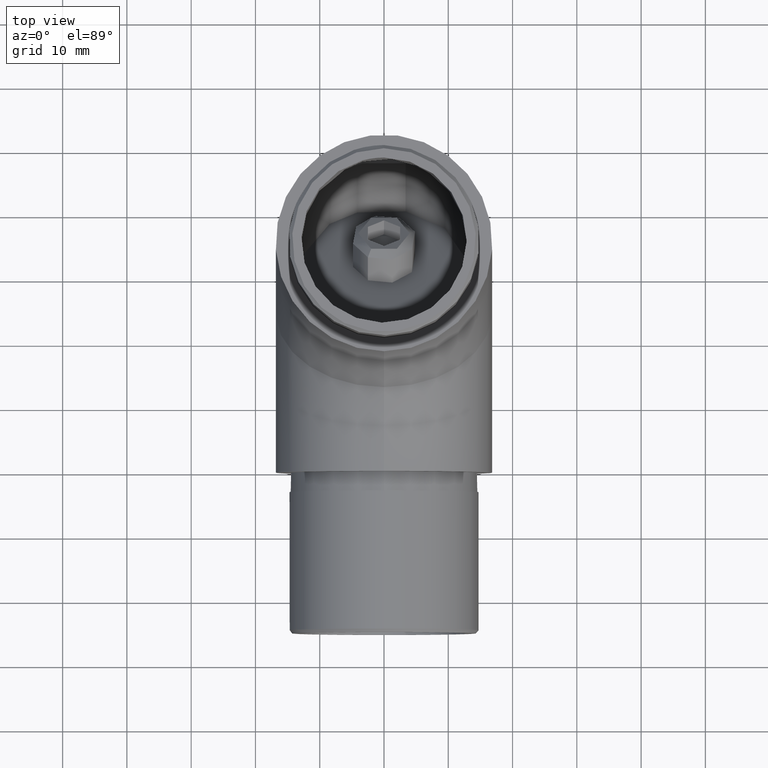
[diagram: clean part render]
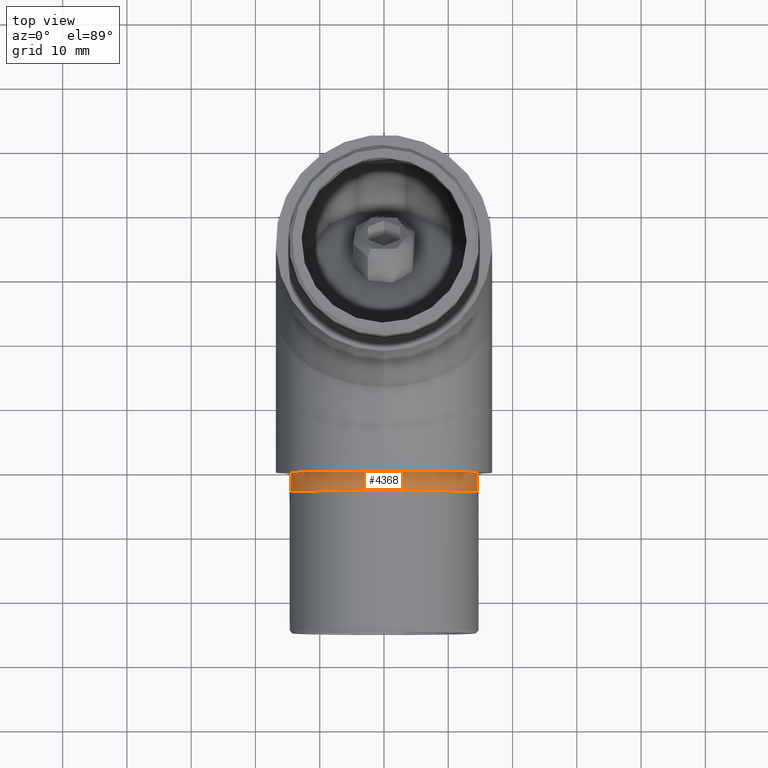
[diagram: same view with one face highlighted and labeled with its STEP entity id]
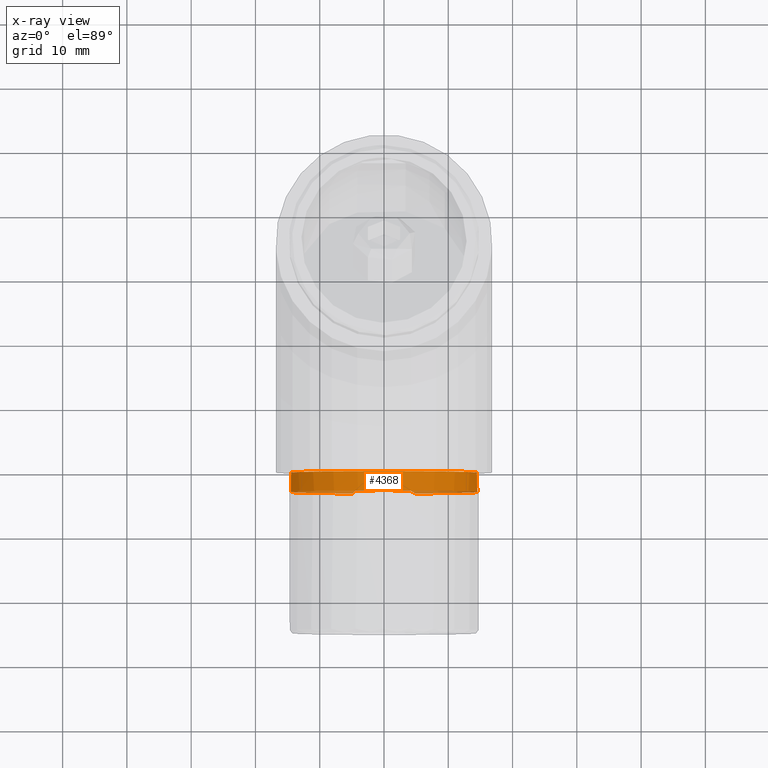
[diagram: x-ray of the same camera — body ghosted, the highlighted face saturated]
A machine part, top view. The second image highlights one B-rep face of the part: STEP entity #4368.
The next image is the same camera in x-ray: the body ghosted, the highlighted face saturated — about 7% of this face is hidden behind the body in this view.
In plain terms, the highlighted cylindrical surface (bore or boss wall) has radius 14.6 mm, axis along (0, 1, 0).
Its self-contained STEP definition (entity closure, byte-faithful):
#169 = VERTEX_POINT ( 'NONE', #4537 ) ;
#983 = CARTESIAN_POINT ( 'NONE',  ( 3.735386731977853500, -1.792429129729305100, -14.11522963612349600 ) ) ;
#1081 = CARTESIAN_POINT ( 'NONE',  ( -0.9508316889252554900, -0.5718772802580958100, -14.57092649512015800 ) ) ;
#1141 = CARTESIAN_POINT ( 'NONE',  ( -2.956171444805388800, -1.260860760378806200, -14.29916744592166800 ) ) ;
#1188 = CARTESIAN_POINT ( 'NONE',  ( 4.830417884858544400, -3.000000000000000000, -13.77777424178661500 ) ) ;
#2179 = CARTESIAN_POINT ( 'NONE',  ( 3.159652933937001000, -1.381371470836823900, -14.25540352605387200 ) ) ;
#2243 = CARTESIAN_POINT ( 'NONE',  ( 1.880530025225312500, -0.7911347131726507200, -14.48013043217059000 ) ) ;
#2487 = CARTESIAN_POINT ( 'NONE',  ( -4.565246273361622400, -2.608201925851574700, -13.87074206607036500 ) ) ;
#2943 = ORIENTED_EDGE ( 'NONE', *, *, #10771, .T. ) ;
#3161 = DIRECTION ( 'NONE',  ( -0.0000000000000000000, -1.000000000000000000, -0.0000000000000000000 ) ) ;
#3458 = CARTESIAN_POINT ( 'NONE',  ( -1.646127434438631200, -0.7211364073155903700, -14.50875816270890800 ) ) ;
#3522 = CARTESIAN_POINT ( 'NONE',  ( 0.4834165641600854400, -0.5037263662810554900, -14.59991893369374900 ) ) ;
#4148 = FACE_OUTER_BOUND ( 'NONE', #13182, .T. ) ;
#4368 = ADVANCED_FACE ( 'NONE', ( #4148, #6672 ), #12766, .T. ) ;
#4434 = DIRECTION ( 'NONE',  ( 0.0000000000000000000, 0.0000000000000000000, 1.000000000000000000 ) ) ;
#4453 = B_SPLINE_CURVE_WITH_KNOTS ( 'NONE', 3,
 ( #1188, #5825, #8053, #983, #9321, #2179, #15284, #5732, #14025, #2243, #6914, #5781, #3522, #6962, #4641, #1081, #9363, #3458, #7028, #15334, #8209, #1141, #13005, #9628, #7307, #7118, #2487, #8517 ),
 .UNSPECIFIED., .F., .F.,
 ( 4, 2, 2, 2, 2, 2, 2, 2, 2, 2, 2, 2, 2, 4 ),
 ( 2.776912483567713300E-018, 0.001426345857129392100, 0.002139518785694086200, 0.002852691714258781100, 0.003565864642823475600, 0.004279037571388169700, 0.005705383428517559600, 0.006418556357082254100, 0.007131729285646948600, 0.007844902214211644000, 0.008558075142776337700, 0.009271248071341033100, 0.009984420999905726700, 0.01141076685703511900 ),
 .UNSPECIFIED. ) ;
#4537 = CARTESIAN_POINT ( 'NONE',  ( -4.830417884858544400, -3.000000000000000000, -13.77777424178661500 ) ) ;
#4567 = DIRECTION ( 'NONE',  ( 0.0000000000000000000, 0.0000000000000000000, 1.000000000000000000 ) ) ;
#4613 = AXIS2_PLACEMENT_3D ( 'NONE', #11594, #11717, #4567 ) ;
#4641 = CARTESIAN_POINT ( 'NONE',  ( -0.4781975734803770600, -0.5173091544466347200, -14.59408465466664700 ) ) ;
#5291 = DIRECTION ( 'NONE',  ( 0.0000000000000000000, -1.000000000000000000, 0.0000000000000000000 ) ) ;
#5732 = CARTESIAN_POINT ( 'NONE',  ( 2.541049677118708800, -1.048364987016058100, -14.37873928751939600 ) ) ;
#5781 = CARTESIAN_POINT ( 'NONE',  ( 0.9553353840781989600, -0.5584521793620861300, -14.57613707327568200 ) ) ;
#5825 = CARTESIAN_POINT ( 'NONE',  ( 4.565267297049747000, -2.608232988907210900, -13.87073469527175900 ) ) ;
#5881 = VERTEX_POINT ( 'NONE', #10445 ) ;
#6573 = AXIS2_PLACEMENT_3D ( 'NONE', #12738, #3161, #4434 ) ;
#6672 = FACE_OUTER_BOUND ( 'NONE', #14054, .T. ) ;
#6914 = CARTESIAN_POINT ( 'NONE',  ( 1.649877477060355300, -0.7221469430622207100, -14.50834290087732500 ) ) ;
#6962 = CARTESIAN_POINT ( 'NONE',  ( -0.2380264248483486600, -0.5034428641400690000, -14.60004022365374100 ) ) ;
#7028 = CARTESIAN_POINT ( 'NONE',  ( -1.875431559331688800, -0.7894497092446688400, -14.48080957857423500 ) ) ;
#7118 = CARTESIAN_POINT ( 'NONE',  ( -4.258482048479646800, -2.256755400060301000, -13.96988890333881600 ) ) ;
#7307 = CARTESIAN_POINT ( 'NONE',  ( -3.732464273727159800, -1.789996527497259800, -14.11601313323148200 ) ) ;
#7705 = VERTEX_POINT ( 'NONE', #8251 ) ;
#8053 = CARTESIAN_POINT ( 'NONE',  ( 4.259037393392629800, -2.257572393310461700, -13.96967742481636800 ) ) ;
#8209 = CARTESIAN_POINT ( 'NONE',  ( -2.538843243724201700, -1.047342400341021000, -14.37913120607029800 ) ) ;
#8251 = CARTESIAN_POINT ( 'NONE',  ( 0.0000000000000000000, 0.0000000000000000000, 14.60000000000000100 ) ) ;
#8517 = CARTESIAN_POINT ( 'NONE',  ( -4.830417884858544400, -3.000000000000000000, -13.77777424178661500 ) ) ;
#9321 = CARTESIAN_POINT ( 'NONE',  ( 3.548644264329825900, -1.646684514958234300, -14.16358218244257800 ) ) ;
#9363 = CARTESIAN_POINT ( 'NONE',  ( -1.184420072814807800, -0.6125729409530502600, -14.55372625981048400 ) ) ;
#9628 = CARTESIAN_POINT ( 'NONE',  ( -3.545120198032026600, -1.644105043494992200, -14.16445498077169400 ) ) ;
#10012 = CARTESIAN_POINT ( 'NONE',  ( 0.0000000000000000000, -3.000000000000000000, 0.0000000000000000000 ) ) ;
#10031 = AXIS2_PLACEMENT_3D ( 'NONE', #10012, #5291, #11219 ) ;
#10271 = CIRCLE ( 'NONE', #6573, 14.60000000000000100 ) ;
#10445 = CARTESIAN_POINT ( 'NONE',  ( 4.830417884858544400, -3.000000000000000000, -13.77777424178661500 ) ) ;
#10771 = EDGE_CURVE ( 'NONE', #7705, #7705, #10271, .T. ) ;
#11219 = DIRECTION ( 'NONE',  ( 0.0000000000000000000, 0.0000000000000000000, -1.000000000000000000 ) ) ;
#11594 = CARTESIAN_POINT ( 'NONE',  ( 0.0000000000000000000, -3.000000000000000000, 0.0000000000000000000 ) ) ;
#11717 = DIRECTION ( 'NONE',  ( -0.0000000000000000000, 1.000000000000000000, -0.0000000000000000000 ) ) ;
#12242 = EDGE_CURVE ( 'NONE', #5881, #169, #4453, .T. ) ;
#12519 = EDGE_CURVE ( 'NONE', #5881, #169, #12976, .T. ) ;
#12738 = CARTESIAN_POINT ( 'NONE',  ( 0.0000000000000000000, 0.0000000000000000000, 0.0000000000000000000 ) ) ;
#12766 = CYLINDRICAL_SURFACE ( 'NONE', #4613, 14.60000000000000100 ) ;
#12976 = CIRCLE ( 'NONE', #10031, 14.60000000000000100 ) ;
#13005 = CARTESIAN_POINT ( 'NONE',  ( -3.157448283008144100, -1.380046267310292900, -14.25588238100089300 ) ) ;
#13182 = EDGE_LOOP ( 'NONE', ( #2943 ) ) ;
#13476 = ORIENTED_EDGE ( 'NONE', *, *, #12242, .T. ) ;
#14025 = CARTESIAN_POINT ( 'NONE',  ( 2.325597284172718400, -0.9542123613228968800, -14.41534487205544400 ) ) ;
#14054 = EDGE_LOOP ( 'NONE', ( #13476, #14424 ) ) ;
#14424 = ORIENTED_EDGE ( 'NONE', *, *, #12519, .F. ) ;
#15284 = CARTESIAN_POINT ( 'NONE',  ( 2.958078331756444500, -1.261943732508238800, -14.29877091022973100 ) ) ;
#15334 = CARTESIAN_POINT ( 'NONE',  ( -2.322794949929233100, -0.9530056296990450100, -14.41581469099987500 ) ) ;